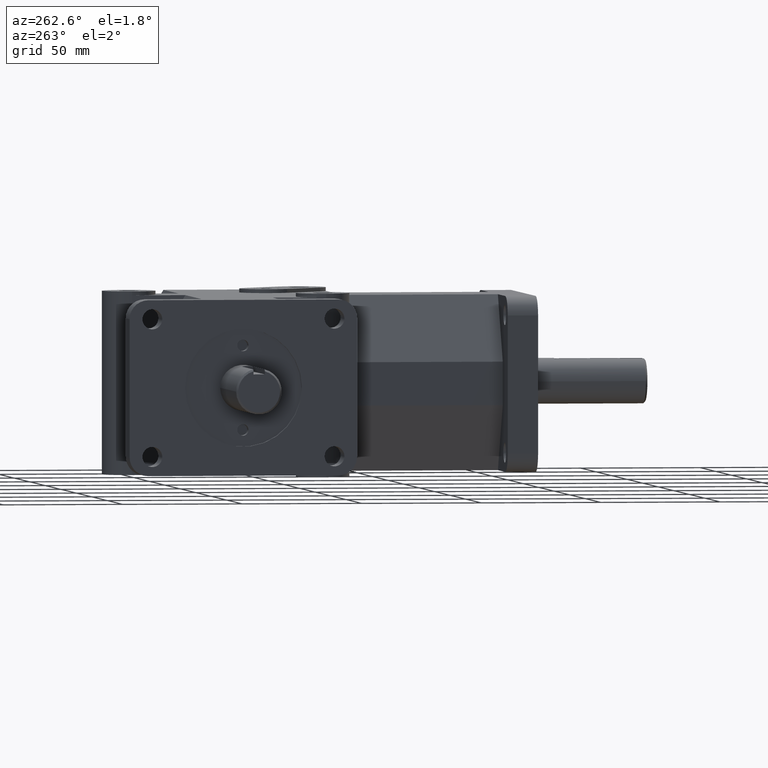
[diagram: clean part render]
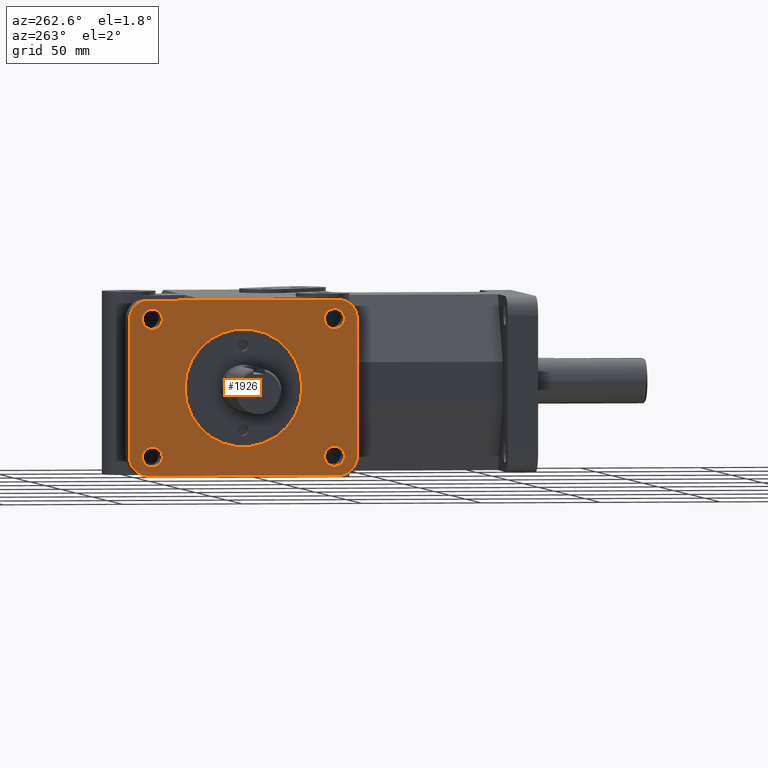
[diagram: same view with one face highlighted and labeled with its STEP entity id]
A machine part, auxiliary view. The second image highlights one B-rep face of the part: STEP entity #1926.
In plain terms, the highlighted planar face has unit normal (-1, 0, 0).
Its self-contained STEP definition (entity closure, byte-faithful):
#47=LINE('',#2939,#238);
#48=LINE('',#2940,#239);
#49=LINE('',#2941,#240);
#50=LINE('',#2942,#241);
#238=VECTOR('',#2353,1.);
#239=VECTOR('',#2354,1.);
#240=VECTOR('',#2355,1.);
#241=VECTOR('',#2356,1.);
#449=FACE_BOUND('',#610,.T.);
#450=FACE_BOUND('',#611,.T.);
#451=FACE_BOUND('',#612,.T.);
#452=FACE_BOUND('',#613,.T.);
#453=FACE_BOUND('',#614,.T.);
#489=FACE_OUTER_BOUND('',#609,.T.);
#609=EDGE_LOOP('',(#1344,#1345,#1346,#1347,#1348,#1349,#1350,#1351));
#610=EDGE_LOOP('',(#1352));
#611=EDGE_LOOP('',(#1353));
#612=EDGE_LOOP('',(#1354));
#613=EDGE_LOOP('',(#1355));
#614=EDGE_LOOP('',(#1356));
#740=CIRCLE('',#2050,0.963);
#743=CIRCLE('',#2056,0.31);
#746=CIRCLE('',#2060,0.31);
#747=CIRCLE('',#2062,0.31);
#749=CIRCLE('',#2065,0.31);
#761=CIRCLE('',#2083,0.164);
#762=CIRCLE('',#2084,0.164);
#763=CIRCLE('',#2085,0.164);
#764=CIRCLE('',#2086,0.164);
#825=VERTEX_POINT('',#2840);
#828=VERTEX_POINT('',#2852);
#829=VERTEX_POINT('',#2853);
#834=VERTEX_POINT('',#2864);
#835=VERTEX_POINT('',#2866);
#836=VERTEX_POINT('',#2870);
#837=VERTEX_POINT('',#2871);
#840=VERTEX_POINT('',#2879);
#841=VERTEX_POINT('',#2880);
#866=VERTEX_POINT('',#2943);
#867=VERTEX_POINT('',#2945);
#868=VERTEX_POINT('',#2947);
#869=VERTEX_POINT('',#2949);
#1010=EDGE_CURVE('',#825,#825,#740,.T.);
#1016=EDGE_CURVE('',#828,#829,#743,.T.);
#1022=EDGE_CURVE('',#834,#835,#746,.T.);
#1024=EDGE_CURVE('',#836,#837,#747,.T.);
#1028=EDGE_CURVE('',#840,#841,#749,.T.);
#1056=EDGE_CURVE('',#828,#835,#47,.T.);
#1057=EDGE_CURVE('',#834,#837,#48,.T.);
#1058=EDGE_CURVE('',#836,#841,#49,.T.);
#1059=EDGE_CURVE('',#829,#840,#50,.T.);
#1060=EDGE_CURVE('',#866,#866,#761,.T.);
#1061=EDGE_CURVE('',#867,#867,#762,.T.);
#1062=EDGE_CURVE('',#868,#868,#763,.T.);
#1063=EDGE_CURVE('',#869,#869,#764,.T.);
#1344=ORIENTED_EDGE('',*,*,#1016,.F.);
#1345=ORIENTED_EDGE('',*,*,#1056,.T.);
#1346=ORIENTED_EDGE('',*,*,#1022,.F.);
#1347=ORIENTED_EDGE('',*,*,#1057,.T.);
#1348=ORIENTED_EDGE('',*,*,#1024,.F.);
#1349=ORIENTED_EDGE('',*,*,#1058,.T.);
#1350=ORIENTED_EDGE('',*,*,#1028,.F.);
#1351=ORIENTED_EDGE('',*,*,#1059,.F.);
#1352=ORIENTED_EDGE('',*,*,#1010,.T.);
#1353=ORIENTED_EDGE('',*,*,#1060,.T.);
#1354=ORIENTED_EDGE('',*,*,#1061,.T.);
#1355=ORIENTED_EDGE('',*,*,#1062,.T.);
#1356=ORIENTED_EDGE('',*,*,#1063,.T.);
#1843=PLANE('',#2082);
#1926=ADVANCED_FACE('',(#489,#449,#450,#451,#452,#453),#1843,.T.);
#2050=AXIS2_PLACEMENT_3D('',#2841,#2262,#2263);
#2056=AXIS2_PLACEMENT_3D('',#2854,#2277,#2278);
#2060=AXIS2_PLACEMENT_3D('',#2867,#2288,#2289);
#2062=AXIS2_PLACEMENT_3D('',#2872,#2293,#2294);
#2065=AXIS2_PLACEMENT_3D('',#2881,#2301,#2302);
#2082=AXIS2_PLACEMENT_3D('',#2938,#2351,#2352);
#2083=AXIS2_PLACEMENT_3D('',#2944,#2357,#2358);
#2084=AXIS2_PLACEMENT_3D('',#2946,#2359,#2360);
#2085=AXIS2_PLACEMENT_3D('',#2948,#2361,#2362);
#2086=AXIS2_PLACEMENT_3D('',#2950,#2363,#2364);
#2262=DIRECTION('center_axis',(1.,0.,0.));
#2263=DIRECTION('ref_axis',(0.,1.,0.));
#2277=DIRECTION('center_axis',(1.,0.,0.));
#2278=DIRECTION('ref_axis',(0.,-0.707106781186548,0.707106781186548));
#2288=DIRECTION('center_axis',(1.,0.,0.));
#2289=DIRECTION('ref_axis',(0.,0.707106781186548,0.707106781186548));
#2293=DIRECTION('center_axis',(1.,0.,0.));
#2294=DIRECTION('ref_axis',(0.,0.707106781186548,-0.707106781186548));
#2301=DIRECTION('center_axis',(1.,0.,0.));
#2302=DIRECTION('ref_axis',(0.,-0.707106781186548,-0.707106781186548));
#2351=DIRECTION('center_axis',(-1.,0.,0.));
#2352=DIRECTION('ref_axis',(0.,1.,0.));
#2353=DIRECTION('',(0.,1.,0.));
#2354=DIRECTION('',(0.,0.,-1.));
#2355=DIRECTION('',(0.,-1.,0.));
#2356=DIRECTION('',(0.,0.,-1.));
#2357=DIRECTION('center_axis',(1.,0.,0.));
#2358=DIRECTION('ref_axis',(0.,-1.,0.));
#2359=DIRECTION('center_axis',(1.,0.,0.));
#2360=DIRECTION('ref_axis',(0.,-1.,0.));
#2361=DIRECTION('center_axis',(1.,0.,0.));
#2362=DIRECTION('ref_axis',(0.,-1.,0.));
#2363=DIRECTION('center_axis',(1.,0.,0.));
#2364=DIRECTION('ref_axis',(0.,-1.,0.));
#2840=CARTESIAN_POINT('',(-3.,4.037,-1.1793348675789E-16));
#2841=CARTESIAN_POINT('Origin',(-3.,5.,0.));
#2852=CARTESIAN_POINT('',(-3.,3.435,1.4375));
#2853=CARTESIAN_POINT('',(-3.,3.125,1.1275));
#2854=CARTESIAN_POINT('Origin',(-3.,3.435,1.1275));
#2864=CARTESIAN_POINT('',(-3.,6.875,1.1275));
#2866=CARTESIAN_POINT('',(-3.,6.565,1.4375));
#2867=CARTESIAN_POINT('Origin',(-3.,6.565,1.1275));
#2870=CARTESIAN_POINT('',(-3.,6.565,-1.4375));
#2871=CARTESIAN_POINT('',(-3.,6.875,-1.1275));
#2872=CARTESIAN_POINT('Origin',(-3.,6.565,-1.1275));
#2879=CARTESIAN_POINT('',(-3.,3.125,-1.1275));
#2880=CARTESIAN_POINT('',(-3.,3.435,-1.4375));
#2881=CARTESIAN_POINT('Origin',(-3.,3.435,-1.1275));
#2938=CARTESIAN_POINT('Origin',(-3.,6.875,0.));
#2939=CARTESIAN_POINT('',(-3.,3.125,1.4375));
#2940=CARTESIAN_POINT('',(-3.,6.875,0.));
#2941=CARTESIAN_POINT('',(-3.,3.125,-1.4375));
#2942=CARTESIAN_POINT('',(-3.,3.125,0.));
#2943=CARTESIAN_POINT('',(-3.,6.664,-1.125));
#2944=CARTESIAN_POINT('Origin',(-3.,6.5,-1.125));
#2945=CARTESIAN_POINT('',(-3.,3.664,-1.125));
#2946=CARTESIAN_POINT('Origin',(-3.,3.5,-1.125));
#2947=CARTESIAN_POINT('',(-3.,3.664,1.125));
#2948=CARTESIAN_POINT('Origin',(-3.,3.5,1.125));
#2949=CARTESIAN_POINT('',(-3.,6.664,1.125));
#2950=CARTESIAN_POINT('Origin',(-3.,6.5,1.125));